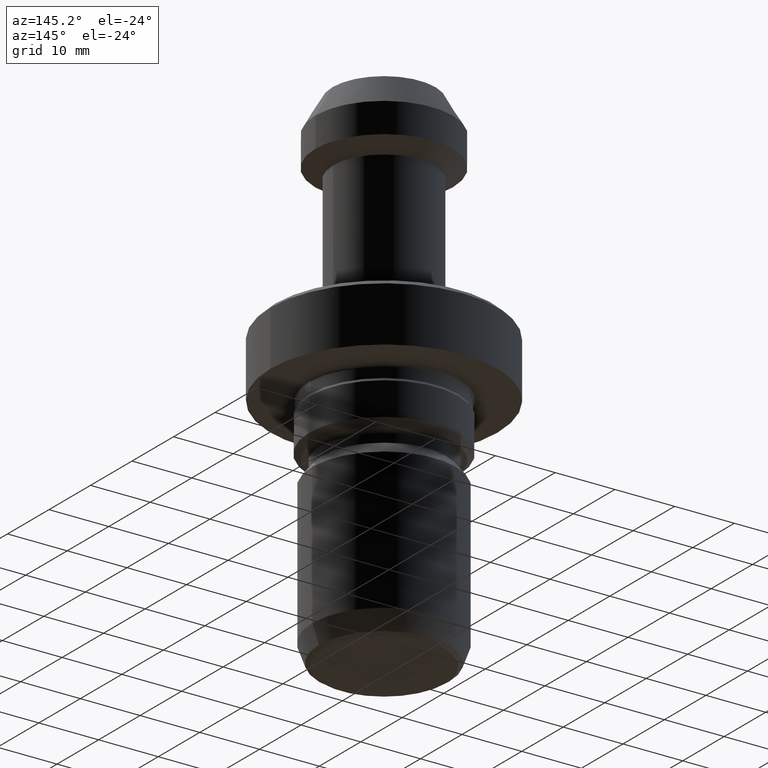
[diagram: clean part render]
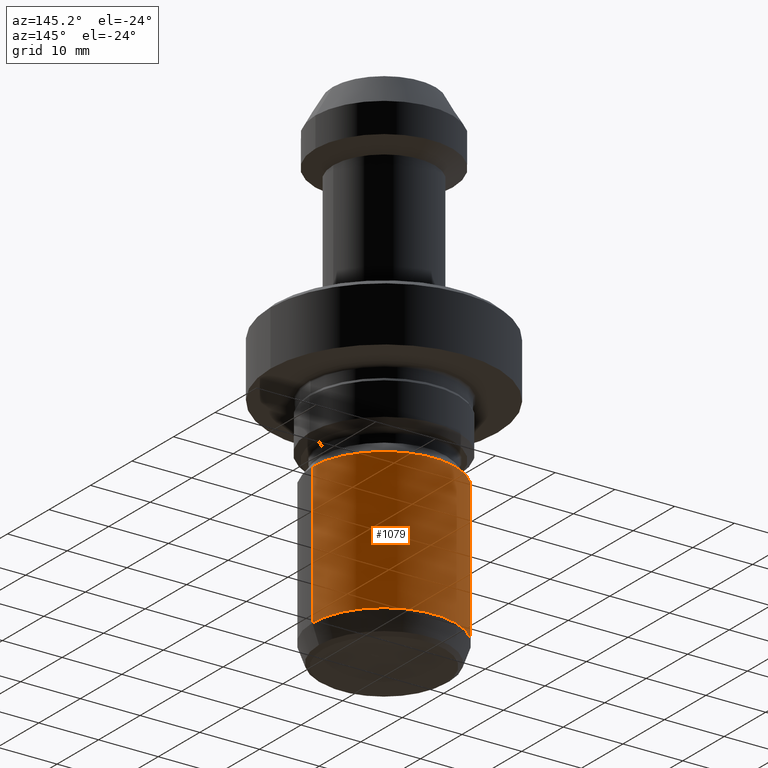
[diagram: same view with one face highlighted and labeled with its STEP entity id]
A machine part, auxiliary view. The second image highlights one B-rep face of the part: STEP entity #1079.
In plain terms, the highlighted cylindrical surface (partial cylindrical patch) has radius 12 mm, axis along (-0, -0, 1).
Its self-contained STEP definition (entity closure, byte-faithful):
#52 = EDGE_CURVE ( 'NONE', #1155, #134, #443, .T. ) ;
#65 = ORIENTED_EDGE ( 'NONE', *, *, #802, .F. ) ;
#100 = CARTESIAN_POINT ( 'NONE',  ( -12.00000000000000000, 1.469576158976823900E-015, -81.50000000000000000 ) ) ;
#134 = VERTEX_POINT ( 'NONE', #413 ) ;
#151 = VERTEX_POINT ( 'NONE', #1053 ) ;
#167 = ORIENTED_EDGE ( 'NONE', *, *, #847, .F. ) ;
#224 = AXIS2_PLACEMENT_3D ( 'NONE', #1116, #828, #638 ) ;
#286 = DIRECTION ( 'NONE',  ( -0.0000000000000000000, -0.0000000000000000000, 1.000000000000000000 ) ) ;
#289 = DIRECTION ( 'NONE',  ( 1.000000000000000000, 0.0000000000000000000, 0.0000000000000000000 ) ) ;
#298 = EDGE_LOOP ( 'NONE', ( #916, #962, #65, #167 ) ) ;
#339 = CARTESIAN_POINT ( 'NONE',  ( -12.00000000000000000, 1.469576158976823900E-015, 0.0000000000000000000 ) ) ;
#382 = CYLINDRICAL_SURFACE ( 'NONE', #224, 12.00000000000000000 ) ;
#413 = CARTESIAN_POINT ( 'NONE',  ( -12.00000000000000000, 1.469576158976823900E-015, -57.99999999999997900 ) ) ;
#440 = AXIS2_PLACEMENT_3D ( 'NONE', #920, #749, #289 ) ;
#443 = LINE ( 'NONE', #339, #1141 ) ;
#550 = VECTOR ( 'NONE', #286, 1000.000000000000000 ) ;
#562 = CARTESIAN_POINT ( 'NONE',  ( 12.00000000000000000, 0.0000000000000000000, 0.0000000000000000000 ) ) ;
#569 = DIRECTION ( 'NONE',  ( -0.0000000000000000000, -0.0000000000000000000, 1.000000000000000000 ) ) ;
#587 = CIRCLE ( 'NONE', #440, 12.00000000000000000 ) ;
#638 = DIRECTION ( 'NONE',  ( 1.000000000000000000, 0.0000000000000000000, 0.0000000000000000000 ) ) ;
#646 = FACE_OUTER_BOUND ( 'NONE', #298, .T. ) ;
#662 = CIRCLE ( 'NONE', #938, 12.00000000000000000 ) ;
#739 = CARTESIAN_POINT ( 'NONE',  ( 0.0000000000000000000, 0.0000000000000000000, -57.99999999999997900 ) ) ;
#749 = DIRECTION ( 'NONE',  ( -0.0000000000000000000, -0.0000000000000000000, 1.000000000000000000 ) ) ;
#763 = VERTEX_POINT ( 'NONE', #946 ) ;
#802 = EDGE_CURVE ( 'NONE', #151, #134, #662, .T. ) ;
#828 = DIRECTION ( 'NONE',  ( -0.0000000000000000000, -0.0000000000000000000, 1.000000000000000000 ) ) ;
#845 = DIRECTION ( 'NONE',  ( 1.000000000000000000, 0.0000000000000000000, 0.0000000000000000000 ) ) ;
#847 = EDGE_CURVE ( 'NONE', #763, #151, #1041, .T. ) ;
#916 = ORIENTED_EDGE ( 'NONE', *, *, #1113, .T. ) ;
#920 = CARTESIAN_POINT ( 'NONE',  ( 0.0000000000000000000, 0.0000000000000000000, -81.50000000000000000 ) ) ;
#938 = AXIS2_PLACEMENT_3D ( 'NONE', #739, #569, #845 ) ;
#946 = CARTESIAN_POINT ( 'NONE',  ( 12.00000000000000000, 0.0000000000000000000, -81.50000000000000000 ) ) ;
#962 = ORIENTED_EDGE ( 'NONE', *, *, #52, .T. ) ;
#1041 = LINE ( 'NONE', #562, #550 ) ;
#1053 = CARTESIAN_POINT ( 'NONE',  ( 12.00000000000000000, 0.0000000000000000000, -57.99999999999997900 ) ) ;
#1079 = ADVANCED_FACE ( 'NONE', ( #646 ), #382, .T. ) ;
#1113 = EDGE_CURVE ( 'NONE', #763, #1155, #587, .T. ) ;
#1116 = CARTESIAN_POINT ( 'NONE',  ( 0.0000000000000000000, 0.0000000000000000000, 0.0000000000000000000 ) ) ;
#1141 = VECTOR ( 'NONE', #1154, 1000.000000000000000 ) ;
#1154 = DIRECTION ( 'NONE',  ( -0.0000000000000000000, -0.0000000000000000000, 1.000000000000000000 ) ) ;
#1155 = VERTEX_POINT ( 'NONE', #100 ) ;